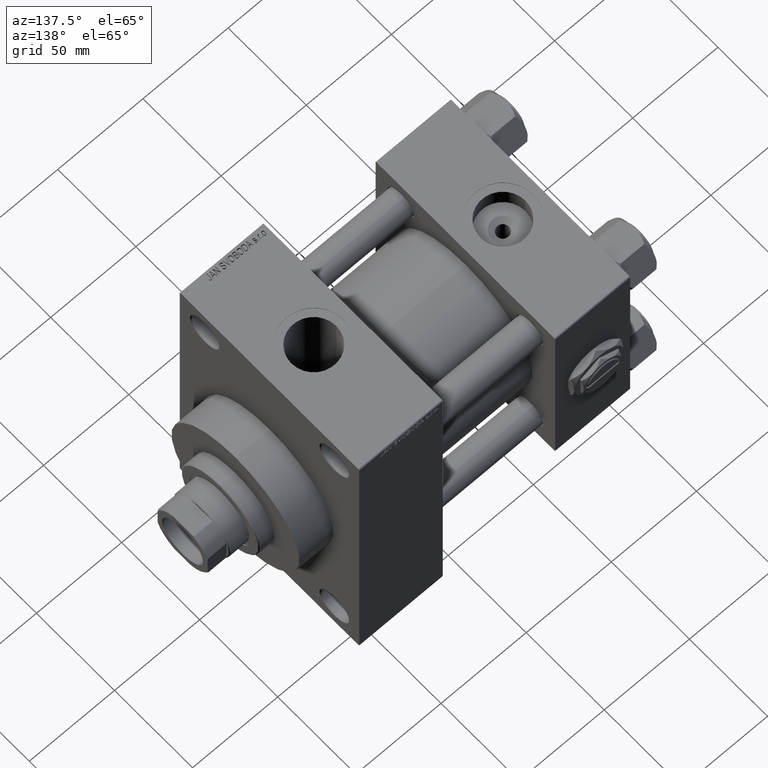
[diagram: clean part render]
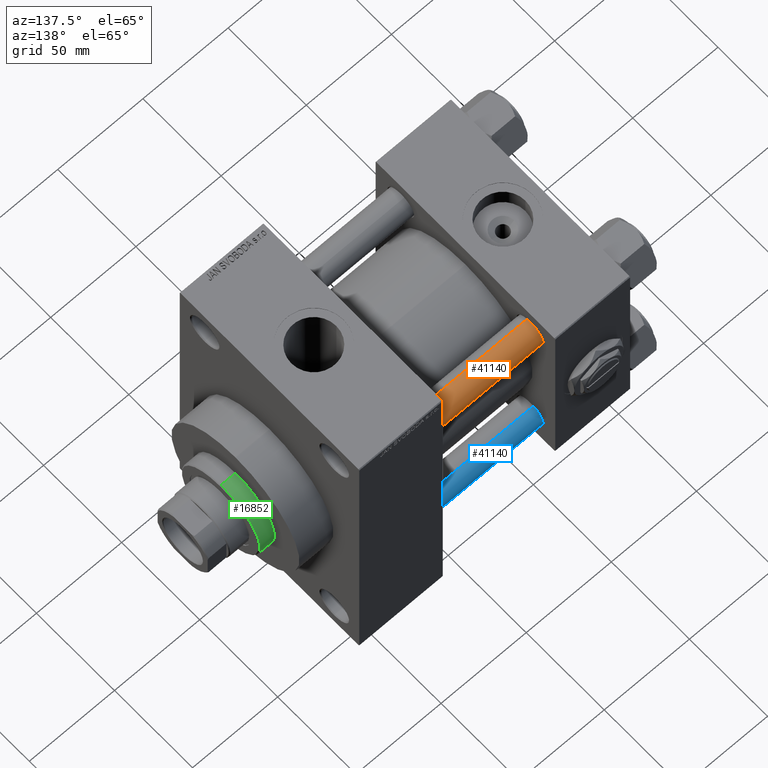
[diagram: same view with three faces highlighted in distinct colors, each labeled with its STEP entity id]
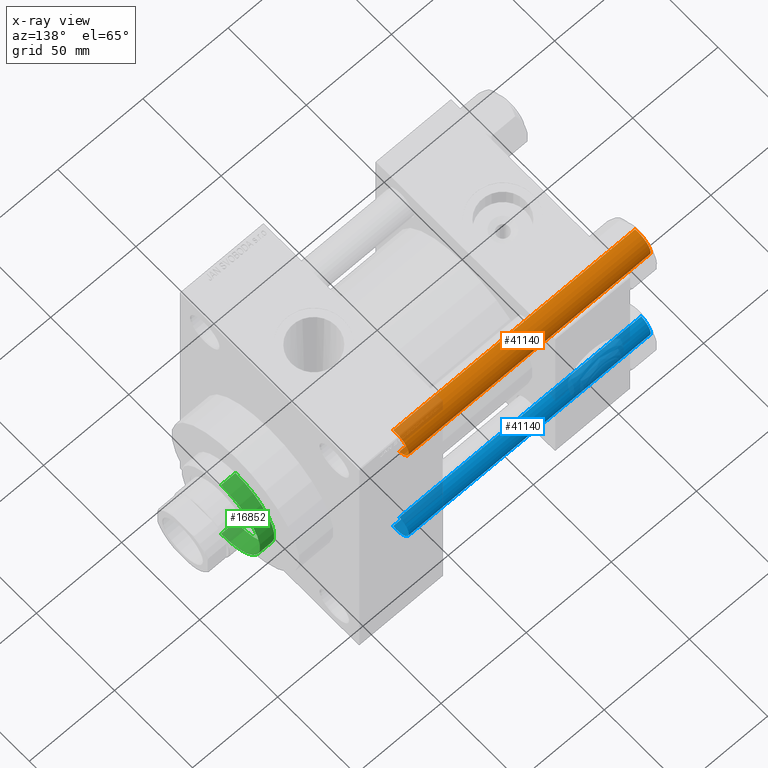
[diagram: x-ray of the same camera — body ghosted, the three highlighted faces saturated]
A machine part, auxiliary view with three faces highlighted in distinct colors.
The next image is the same camera in x-ray (body ghosted, the three faces saturated) — at least one of them is partly hidden behind the body in this view.
Their STEP definitions:

[orange] entity #41140 — the highlighted cylindrical surface (edge-blend (fillet) strip) has radius 8 mm, axis along (-1, -0, 0).
#913 = EDGE_CURVE ( 'NONE', #48496, #20076, #44313, .T. ) ;
#1838 = DIRECTION ( 'NONE',  ( 1.000000000000000000, 0.000000000000000000, 0.000000000000000000 ) ) ;
#4649 = CIRCLE ( 'NONE', #8642, 8.000000000000000000 ) ;
#4837 = CARTESIAN_POINT ( 'NONE',  ( -8.000000000000000000, 0.000000000000000000, 142.4999999999999716 ) ) ;
#8318 = VECTOR ( 'NONE', #29294, 1000.000000000000000 ) ;
#8567 = AXIS2_PLACEMENT_3D ( 'NONE', #24357, #47119, #31850 ) ;
#8642 = AXIS2_PLACEMENT_3D ( 'NONE', #16351, #20340, #39103 ) ;
#12510 = CARTESIAN_POINT ( 'NONE',  ( 8.000000000000000000, 9.797174393178825657E-16, 142.4999999999999716 ) ) ;
#14048 = CARTESIAN_POINT ( 'NONE',  ( 8.000000000000000000, 9.797174393178825657E-16, 143.0000000000000000 ) ) ;
#15109 = DIRECTION ( 'NONE',  ( -0.000000000000000000, -0.000000000000000000, -1.000000000000000000 ) ) ;
#16351 = CARTESIAN_POINT ( 'NONE',  ( 0.000000000000000000, 0.000000000000000000, 142.4999999999999716 ) ) ;
#17557 = CARTESIAN_POINT ( 'NONE',  ( -8.000000000000000000, 0.000000000000000000, 0.4999999999999726885 ) ) ;
#19088 = CARTESIAN_POINT ( 'NONE',  ( 8.000000000000000000, 9.797174393178825657E-16, 0.4999999999999726885 ) ) ;
#19629 = ORIENTED_EDGE ( 'NONE', *, *, #32026, .T. ) ;
#20076 = VERTEX_POINT ( 'NONE', #19088 ) ;
#20180 = VERTEX_POINT ( 'NONE', #17557 ) ;
#20340 = DIRECTION ( 'NONE',  ( 0.000000000000000000, 0.000000000000000000, -1.000000000000000000 ) ) ;
#24246 = AXIS2_PLACEMENT_3D ( 'NONE', #28331, #40585, #1838 ) ;
#24357 = CARTESIAN_POINT ( 'NONE',  ( 0.000000000000000000, 0.000000000000000000, 143.0000000000000000 ) ) ;
#27749 = ORIENTED_EDGE ( 'NONE', *, *, #913, .T. ) ;
#28099 = FACE_OUTER_BOUND ( 'NONE', #42578, .T. ) ;
#28331 = CARTESIAN_POINT ( 'NONE',  ( 0.000000000000000000, 0.000000000000000000, 0.4999999999999726885 ) ) ;
#29294 = DIRECTION ( 'NONE',  ( -0.000000000000000000, -0.000000000000000000, -1.000000000000000000 ) ) ;
#31238 = ORIENTED_EDGE ( 'NONE', *, *, #45584, .T. ) ;
#31850 = DIRECTION ( 'NONE',  ( -1.000000000000000000, 0.000000000000000000, 0.000000000000000000 ) ) ;
#32026 = EDGE_CURVE ( 'NONE', #20076, #20180, #32231, .T. ) ;
#32231 = CIRCLE ( 'NONE', #24246, 8.000000000000000000 ) ;
#37166 = VERTEX_POINT ( 'NONE', #4837 ) ;
#39103 = DIRECTION ( 'NONE',  ( 1.000000000000000000, 0.000000000000000000, 0.000000000000000000 ) ) ;
#40585 = DIRECTION ( 'NONE',  ( -0.000000000000000000, -0.000000000000000000, 1.000000000000000000 ) ) ;
#41140 = ADVANCED_FACE ( 'NONE', ( #28099 ), #47611, .T. ) ;
#42578 = EDGE_LOOP ( 'NONE', ( #31238, #27749, #19629, #43874 ) ) ;
#42847 = LINE ( 'NONE', #49372, #44576 ) ;
#43874 = ORIENTED_EDGE ( 'NONE', *, *, #48944, .F. ) ;
#44313 = LINE ( 'NONE', #14048, #8318 ) ;
#44576 = VECTOR ( 'NONE', #15109, 1000.000000000000000 ) ;
#45584 = EDGE_CURVE ( 'NONE', #37166, #48496, #4649, .T. ) ;
#47119 = DIRECTION ( 'NONE',  ( -0.000000000000000000, -0.000000000000000000, -1.000000000000000000 ) ) ;
#47611 = CYLINDRICAL_SURFACE ( 'NONE', #8567, 8.000000000000000000 ) ;
#48496 = VERTEX_POINT ( 'NONE', #12510 ) ;
#48944 = EDGE_CURVE ( 'NONE', #37166, #20180, #42847, .T. ) ;
#49372 = CARTESIAN_POINT ( 'NONE',  ( -8.000000000000000000, 0.000000000000000000, 143.0000000000000000 ) ) ;

[blue] entity #41140 — the highlighted cylindrical surface (edge-blend (fillet) strip) has radius 8 mm, axis along (1, -0, 0).
#913 = EDGE_CURVE ( 'NONE', #48496, #20076, #44313, .T. ) ;
#1838 = DIRECTION ( 'NONE',  ( 1.000000000000000000, 0.000000000000000000, 0.000000000000000000 ) ) ;
#4649 = CIRCLE ( 'NONE', #8642, 8.000000000000000000 ) ;
#4837 = CARTESIAN_POINT ( 'NONE',  ( -8.000000000000000000, 0.000000000000000000, 142.4999999999999716 ) ) ;
#8318 = VECTOR ( 'NONE', #29294, 1000.000000000000000 ) ;
#8567 = AXIS2_PLACEMENT_3D ( 'NONE', #24357, #47119, #31850 ) ;
#8642 = AXIS2_PLACEMENT_3D ( 'NONE', #16351, #20340, #39103 ) ;
#12510 = CARTESIAN_POINT ( 'NONE',  ( 8.000000000000000000, 9.797174393178825657E-16, 142.4999999999999716 ) ) ;
#14048 = CARTESIAN_POINT ( 'NONE',  ( 8.000000000000000000, 9.797174393178825657E-16, 143.0000000000000000 ) ) ;
#15109 = DIRECTION ( 'NONE',  ( -0.000000000000000000, -0.000000000000000000, -1.000000000000000000 ) ) ;
#16351 = CARTESIAN_POINT ( 'NONE',  ( 0.000000000000000000, 0.000000000000000000, 142.4999999999999716 ) ) ;
#17557 = CARTESIAN_POINT ( 'NONE',  ( -8.000000000000000000, 0.000000000000000000, 0.4999999999999726885 ) ) ;
#19088 = CARTESIAN_POINT ( 'NONE',  ( 8.000000000000000000, 9.797174393178825657E-16, 0.4999999999999726885 ) ) ;
#19629 = ORIENTED_EDGE ( 'NONE', *, *, #32026, .T. ) ;
#20076 = VERTEX_POINT ( 'NONE', #19088 ) ;
#20180 = VERTEX_POINT ( 'NONE', #17557 ) ;
#20340 = DIRECTION ( 'NONE',  ( 0.000000000000000000, 0.000000000000000000, -1.000000000000000000 ) ) ;
#24246 = AXIS2_PLACEMENT_3D ( 'NONE', #28331, #40585, #1838 ) ;
#24357 = CARTESIAN_POINT ( 'NONE',  ( 0.000000000000000000, 0.000000000000000000, 143.0000000000000000 ) ) ;
#27749 = ORIENTED_EDGE ( 'NONE', *, *, #913, .T. ) ;
#28099 = FACE_OUTER_BOUND ( 'NONE', #42578, .T. ) ;
#28331 = CARTESIAN_POINT ( 'NONE',  ( 0.000000000000000000, 0.000000000000000000, 0.4999999999999726885 ) ) ;
#29294 = DIRECTION ( 'NONE',  ( -0.000000000000000000, -0.000000000000000000, -1.000000000000000000 ) ) ;
#31238 = ORIENTED_EDGE ( 'NONE', *, *, #45584, .T. ) ;
#31850 = DIRECTION ( 'NONE',  ( -1.000000000000000000, 0.000000000000000000, 0.000000000000000000 ) ) ;
#32026 = EDGE_CURVE ( 'NONE', #20076, #20180, #32231, .T. ) ;
#32231 = CIRCLE ( 'NONE', #24246, 8.000000000000000000 ) ;
#37166 = VERTEX_POINT ( 'NONE', #4837 ) ;
#39103 = DIRECTION ( 'NONE',  ( 1.000000000000000000, 0.000000000000000000, 0.000000000000000000 ) ) ;
#40585 = DIRECTION ( 'NONE',  ( -0.000000000000000000, -0.000000000000000000, 1.000000000000000000 ) ) ;
#41140 = ADVANCED_FACE ( 'NONE', ( #28099 ), #47611, .T. ) ;
#42578 = EDGE_LOOP ( 'NONE', ( #31238, #27749, #19629, #43874 ) ) ;
#42847 = LINE ( 'NONE', #49372, #44576 ) ;
#43874 = ORIENTED_EDGE ( 'NONE', *, *, #48944, .F. ) ;
#44313 = LINE ( 'NONE', #14048, #8318 ) ;
#44576 = VECTOR ( 'NONE', #15109, 1000.000000000000000 ) ;
#45584 = EDGE_CURVE ( 'NONE', #37166, #48496, #4649, .T. ) ;
#47119 = DIRECTION ( 'NONE',  ( -0.000000000000000000, -0.000000000000000000, -1.000000000000000000 ) ) ;
#47611 = CYLINDRICAL_SURFACE ( 'NONE', #8567, 8.000000000000000000 ) ;
#48496 = VERTEX_POINT ( 'NONE', #12510 ) ;
#48944 = EDGE_CURVE ( 'NONE', #37166, #20180, #42847, .T. ) ;
#49372 = CARTESIAN_POINT ( 'NONE',  ( -8.000000000000000000, 0.000000000000000000, 143.0000000000000000 ) ) ;

[green] entity #16852 — the highlighted cylindrical surface (partial cylindrical patch) has radius 25 mm, axis along (-1, 0, 0).
#2008 = ORIENTED_EDGE ( 'NONE', *, *, #35348, .T. ) ;
#2702 = CARTESIAN_POINT ( 'NONE',  ( -25.00000000000000000, 0.000000000000000000, 52.25999999999999801 ) ) ;
#2957 = CARTESIAN_POINT ( 'NONE',  ( 25.00000000000000000, 3.061616997868383043E-15, 52.25999999999999801 ) ) ;
#4238 = DIRECTION ( 'NONE',  ( -0.000000000000000000, -0.000000000000000000, -1.000000000000000000 ) ) ;
#7044 = EDGE_CURVE ( 'NONE', #20903, #14528, #47972, .T. ) ;
#9822 = AXIS2_PLACEMENT_3D ( 'NONE', #11610, #26861, #23118 ) ;
#10631 = AXIS2_PLACEMENT_3D ( 'NONE', #29875, #10889, #36651 ) ;
#10889 = DIRECTION ( 'NONE',  ( 0.000000000000000000, 0.000000000000000000, -1.000000000000000000 ) ) ;
#11020 = FACE_OUTER_BOUND ( 'NONE', #44237, .T. ) ;
#11610 = CARTESIAN_POINT ( 'NONE',  ( 0.000000000000000000, 0.000000000000000000, 43.25999999999999801 ) ) ;
#14528 = VERTEX_POINT ( 'NONE', #35633 ) ;
#15275 = CARTESIAN_POINT ( 'NONE',  ( -25.00000000000000000, 0.000000000000000000, 51.75999999999996959 ) ) ;
#15350 = CARTESIAN_POINT ( 'NONE',  ( 25.00000000000000000, 3.061616997868383043E-15, 51.75999999999996959 ) ) ;
#16852 = ADVANCED_FACE ( 'NONE', ( #11020 ), #46002, .T. ) ;
#17092 = ORIENTED_EDGE ( 'NONE', *, *, #7044, .F. ) ;
#17417 = AXIS2_PLACEMENT_3D ( 'NONE', #26273, #4238, #49505 ) ;
#17939 = LINE ( 'NONE', #2702, #22758 ) ;
#20903 = VERTEX_POINT ( 'NONE', #15350 ) ;
#20957 = DIRECTION ( 'NONE',  ( -0.000000000000000000, -0.000000000000000000, -1.000000000000000000 ) ) ;
#22758 = VECTOR ( 'NONE', #29440, 1000.000000000000000 ) ;
#23118 = DIRECTION ( 'NONE',  ( 1.000000000000000000, 0.000000000000000000, 0.000000000000000000 ) ) ;
#26044 = VERTEX_POINT ( 'NONE', #31476 ) ;
#26273 = CARTESIAN_POINT ( 'NONE',  ( 0.000000000000000000, 0.000000000000000000, 52.25999999999999801 ) ) ;
#26861 = DIRECTION ( 'NONE',  ( 0.000000000000000000, 0.000000000000000000, 1.000000000000000000 ) ) ;
#29440 = DIRECTION ( 'NONE',  ( -0.000000000000000000, -0.000000000000000000, -1.000000000000000000 ) ) ;
#29609 = EDGE_CURVE ( 'NONE', #20903, #36734, #34519, .T. ) ;
#29875 = CARTESIAN_POINT ( 'NONE',  ( 0.000000000000000000, 0.000000000000000000, 51.75999999999996959 ) ) ;
#31049 = EDGE_CURVE ( 'NONE', #26044, #14528, #40164, .T. ) ;
#31476 = CARTESIAN_POINT ( 'NONE',  ( -25.00000000000000000, 0.000000000000000000, 43.25999999999999801 ) ) ;
#32370 = VECTOR ( 'NONE', #20957, 1000.000000000000000 ) ;
#34519 = CIRCLE ( 'NONE', #10631, 25.00000000000000000 ) ;
#35348 = EDGE_CURVE ( 'NONE', #36734, #26044, #17939, .T. ) ;
#35633 = CARTESIAN_POINT ( 'NONE',  ( 25.00000000000000000, 3.061616997868383043E-15, 43.25999999999999801 ) ) ;
#36651 = DIRECTION ( 'NONE',  ( 1.000000000000000000, 0.000000000000000000, 0.000000000000000000 ) ) ;
#36734 = VERTEX_POINT ( 'NONE', #15275 ) ;
#36784 = ORIENTED_EDGE ( 'NONE', *, *, #31049, .T. ) ;
#40164 = CIRCLE ( 'NONE', #9822, 25.00000000000000000 ) ;
#44237 = EDGE_LOOP ( 'NONE', ( #17092, #45970, #2008, #36784 ) ) ;
#45970 = ORIENTED_EDGE ( 'NONE', *, *, #29609, .T. ) ;
#46002 = CYLINDRICAL_SURFACE ( 'NONE', #17417, 25.00000000000000000 ) ;
#47972 = LINE ( 'NONE', #2957, #32370 ) ;
#49505 = DIRECTION ( 'NONE',  ( -1.000000000000000000, 0.000000000000000000, 0.000000000000000000 ) ) ;